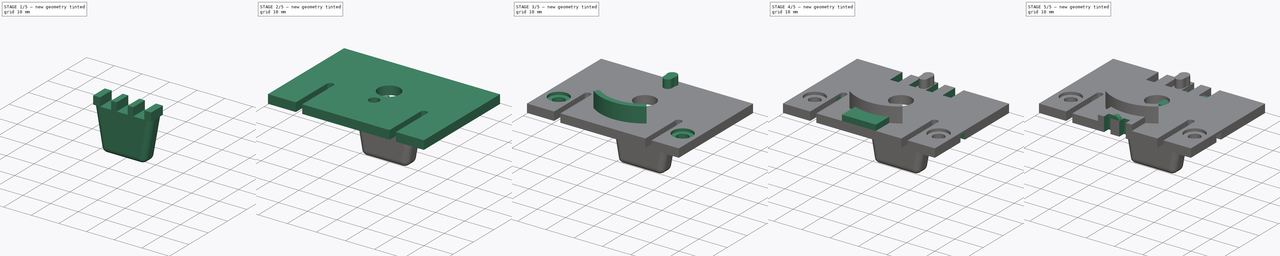
[diagram: build sequence overview — one tinted view per stage of 5, left to right]
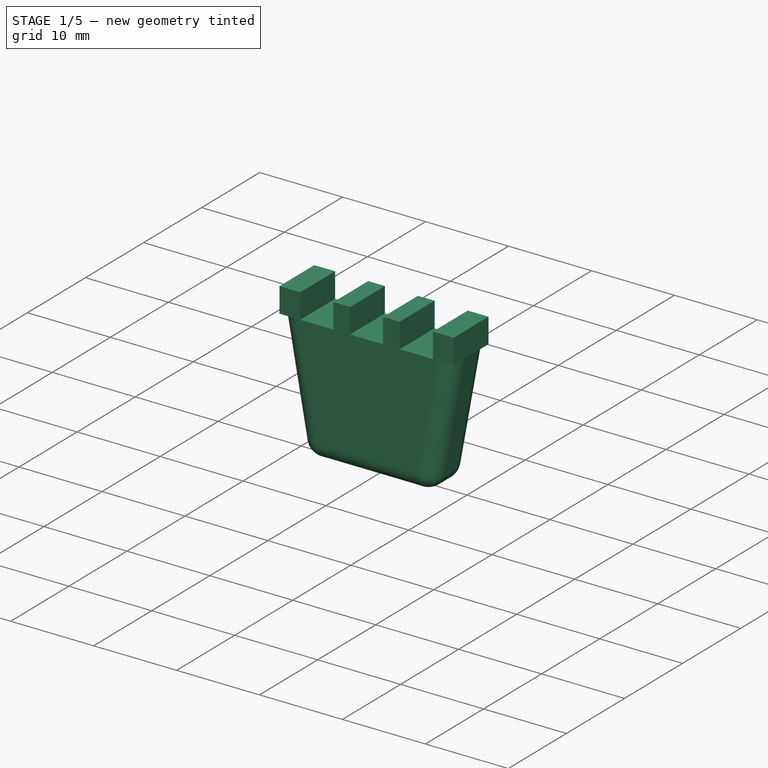
[diagram: stage 1 of 5 — iso view after this stage's code; geometry added in this stage tinted green]
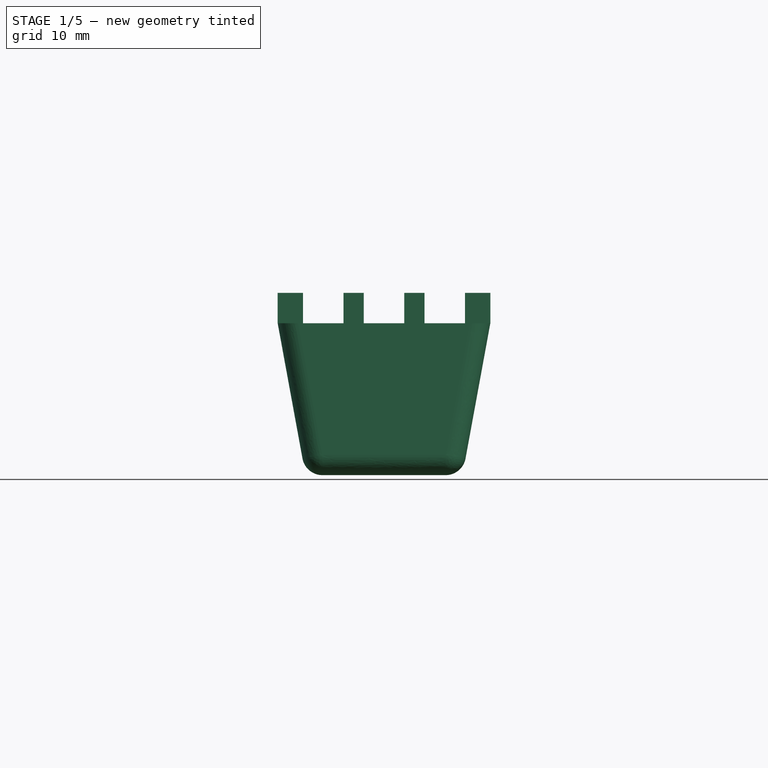
[diagram: stage 1 of 5 — front view after this stage's code; geometry added in this stage tinted green]
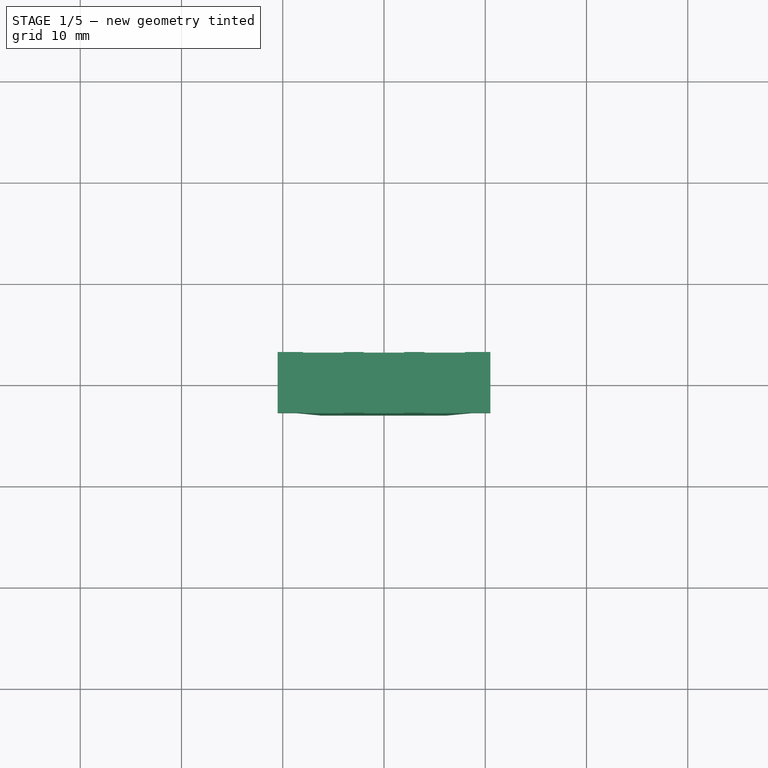
[diagram: stage 1 of 5 — top view after this stage's code; geometry added in this stage tinted green]
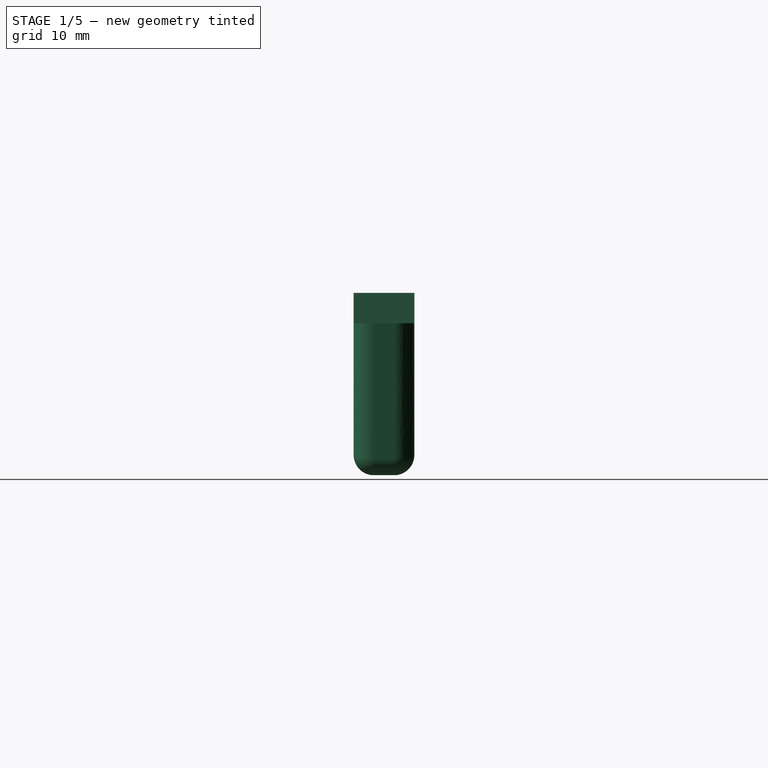
[diagram: stage 1 of 5 — right view after this stage's code; geometry added in this stage tinted green]
FCSTD DOCUMENT  (FreeCAD 0.20R29603 (Git))
Label: d10_bender
License: All rights reserved
LicenseURL: http://en.wikipedia.org/wiki/All_rights_reserved
objects: Sketcher::SketchObject×21, PartDesign::Pocket×10, PartDesign::Pad×9, PartDesign::Body×4, PartDesign::AdditiveLoft×1, PartDesign::Fillet×1, App::Part×1
note: 67 computed .brp shape members not serialized (recipe doc carries the construction recipe); baked Part::Feature solids carry a one-line shape summary decoded from their .brp

FEATURE [Sketcher::SketchObject] Sketch019
  AttachmentOffset = pos=(0,0,-3) rot=(0,0,1;0rad)
  FullyConstrained = true
  MapMode = 5
  Placement = pos=(0,0,-3) rot=(0,0,1;0rad)
  Support = -> [XY_Plane002]
  sketch-geometry (8):
    g0: LineSegment StartX=-8.5 StartY=3 StartZ=0 EndX=8.5 EndY=3 EndZ=0
    g1: LineSegment StartX=10.5 StartY=1 StartZ=0 EndX=10.5 EndY=-1 EndZ=0
    g2: LineSegment StartX=8.5 StartY=-3 StartZ=0 EndX=-8.5 EndY=-3 EndZ=0
    g3: LineSegment StartX=-10.5 StartY=-1 StartZ=0 EndX=-10.5 EndY=1 EndZ=0
    g4: ArcOfCircle CenterX=-8.5 CenterY=1 CenterZ=0 NormalX=0 NormalY=0 NormalZ=1 AngleXU=0 Radius=2 StartAngle=1.5708 EndAngle=3.14159
    g5: ArcOfCircle CenterX=-8.5 CenterY=-1 CenterZ=0 NormalX=0 NormalY=0 NormalZ=1 AngleXU=0 Radius=2 StartAngle=3.14159 EndAngle=4.71239
    g6: ArcOfCircle CenterX=8.5 CenterY=-1 CenterZ=0 NormalX=0 NormalY=0 NormalZ=1 AngleXU=0 Radius=2 StartAngle=4.71239 EndAngle=6.28319
    g7: ArcOfCircle CenterX=8.5 CenterY=1 CenterZ=0 NormalX=0 NormalY=0 NormalZ=1 AngleXU=0 Radius=2 StartAngle=1.72e-14 EndAngle=1.5708
  constraints (20):
    c: Horizontal(g0)
    c: Horizontal(g2)
    c: Vertical(g1)
    c: Vertical(g3)
    c: Tangent(g0,g4) = 1.5708
    c: Tangent(g3,g4) = 1.5708
    c: Tangent(g2,g5) = 1.5708
    c: Tangent(g3,g5) = 1.5708
    c: Tangent(g1,g6) = 1.5708
    c: Tangent(g2,g6) = 1.5708
    c: Tangent(g0,g7) = 1.5708
    c: Tangent(g1,g7) = 1.5708
    c: Radius(g4) = 2
    c: Equal(g4,g5)
    c: Equal(g6,g7)
    c: Equal(g6,g5)
    c: Distance(g3,g1) = 21
    c: DistanceY(g2,g0) = 6
    c: DistanceY(g-1,g0) = 3
    c: DistanceX(g-1,g1) = 10.5
FEATURE [Sketcher::SketchObject] Sketch020
  AttachmentOffset = pos=(0,0,-18) rot=(0,0,1;0rad)
  FullyConstrained = true
  MapMode = 5
  Placement = pos=(0,0,-18) rot=(0,0,1;0rad)
  Support = -> [XY_Plane002]
  sketch-geometry (8):
    g0: LineSegment StartX=-5.75 StartY=3 StartZ=0 EndX=5.75 EndY=3 EndZ=0
    g1: LineSegment StartX=7.75 StartY=1 StartZ=0 EndX=7.75 EndY=-1 EndZ=0
    g2: LineSegment StartX=5.75 StartY=-3 StartZ=0 EndX=-5.75 EndY=-3 EndZ=0
    g3: LineSegment StartX=-7.75 StartY=-1 StartZ=0 EndX=-7.75 EndY=1 EndZ=0
    g4: ArcOfCircle CenterX=-5.75 CenterY=1 CenterZ=0 NormalX=0 NormalY=0 NormalZ=1 AngleXU=0 Radius=2 StartAngle=1.5708 EndAngle=3.14159
    g5: ArcOfCircle CenterX=-5.75 CenterY=-1 CenterZ=0 NormalX=0 NormalY=0 NormalZ=1 AngleXU=0 Radius=2 StartAngle=3.14159 EndAngle=4.71239
    g6: ArcOfCircle CenterX=5.75 CenterY=-1 CenterZ=0 NormalX=0 NormalY=0 NormalZ=1 AngleXU=0 Radius=2 StartAngle=4.71239 EndAngle=6.28319
    g7: ArcOfCircle CenterX=5.75 CenterY=1 CenterZ=0 NormalX=0 NormalY=0 NormalZ=1 AngleXU=0 Radius=2 StartAngle=0 EndAngle=1.5708
  constraints (20):
    c: Horizontal(g0)
    c: Horizontal(g2)
    c: Vertical(g1)
    c: Vertical(g3)
    c: Tangent(g0,g4) = 1.5708
    c: Tangent(g3,g4) = 1.5708
    c: Tangent(g2,g5) = 1.5708
    c: Tangent(g3,g5) = 1.5708
    c: Tangent(g1,g6) = 1.5708
    c: Tangent(g2,g6) = 1.5708
    c: Tangent(g0,g7) = 1.5708
    c: Tangent(g1,g7) = 1.5708
    c: Radius(g4) = 2
    c: Equal(g4,g5)
    c: Equal(g5,g6)
    c: Equal(g6,g7)
    c: DistanceX(g3,g1) = 15.5
    c: DistanceX(g-1,g1) = 7.75
    c: DistanceY(g2,g0) = 6
    c: DistanceY(g2,g-1) = 3
FEATURE [PartDesign::AdditiveLoft] AdditiveLoft
  Closed = false
  Profile = -> Sketch020
  Ruled = false
  Sections = -> [Sketch019]
FEATURE [PartDesign::Fillet] Fillet
  Base = -> AdditiveLoft [Edge3,Edge2,Edge1,Edge8,Edge7,Edge6,Edge5,Edge4]
  BaseFeature = -> AdditiveLoft
  Radius = 2
  SupportTransform = false
  UseAllEdges = false
FEATURE [PartDesign::Body] Body
  Group = -> [Sketch,Pad,Sketch001,Pocket,Sketch002,Pocket001,Sketch004,Pocket002,Sketch009,Sketch010,Sketch012,Pocket004,Pocket005,Pad003,Sketch015,Pad006,Sketch016,Pad007,Sketch018,Pocket008,Sketch023,Pocket009,Sketch024,Pocket010,Sketch013,Pad010,Sketch014,Pad011,Sketch007,Pocket011]
  Origin = -> Origin
  Tip = -> Pocket011
FEATURE [Sketcher::SketchObject] Sketch025
  FullyConstrained = true
  MapMode = 5
  Support = -> [XY_Plane002]
  sketch-geometry (4):
    g0: LineSegment StartX=-10.5 StartY=3 StartZ=0 EndX=10.5 EndY=3 EndZ=0
    g1: LineSegment StartX=10.5 StartY=3 StartZ=0 EndX=10.5 EndY=-3 EndZ=0
    g2: LineSegment StartX=10.5 StartY=-3 StartZ=0 EndX=-10.5 EndY=-3 EndZ=0
    g3: LineSegment StartX=-10.5 StartY=-3 StartZ=0 EndX=-10.5 EndY=3 EndZ=0
  constraints (12):
    c: Coincident(g0,g1)
    c: Coincident(g1,g2)
    c: Coincident(g2,g3)
    c: Coincident(g3,g0)
    c: Horizontal(g0)
    c: Horizontal(g2)
    c: Vertical(g1)
    c: Vertical(g3)
    c: DistanceY(g1,g1) = 6
    c: DistanceY(g1,g-1) = 3
    c: DistanceX(g0,g0) = 21
    c: DistanceX(g-1,g0) = 10.5
FEATURE [PartDesign::Pad] Pad012
  BaseFeature = -> Fillet
  Direction = (0,0,1)
  Length = 3
  Length2 = 10
  Profile = -> Sketch025
  ReferenceAxis = -> Sketch025 [N_Axis]
  Reversed = true
  Type = 0
FEATURE [Sketcher::SketchObject] Sketch026
  FullyConstrained = true
  MapMode = 5
  Placement = pos=(0,0,0) rot=(1,0,0;1.5708rad)
  Support = -> [XZ_Plane002]
  sketch-geometry (12):
    g0: LineSegment StartX=-2 StartY=0 StartZ=0 EndX=2 EndY=0 EndZ=0
    g1: LineSegment StartX=2 StartY=0 StartZ=0 EndX=2 EndY=-3 EndZ=0
    g2: LineSegment StartX=2 StartY=-3 StartZ=0 EndX=-2 EndY=-3 EndZ=0
    g3: LineSegment StartX=-2 StartY=-3 StartZ=0 EndX=-2 EndY=0 EndZ=0
    g4: LineSegment StartX=4 StartY=0 StartZ=0 EndX=8 EndY=0 EndZ=0
    g5: LineSegment StartX=8 StartY=0 StartZ=0 EndX=8 EndY=-3 EndZ=0
    g6: LineSegment StartX=8 StartY=-3 StartZ=0 EndX=4 EndY=-3 EndZ=0
    g7: LineSegment StartX=4 StartY=-3 StartZ=0 EndX=4 EndY=0 EndZ=0
    g8: LineSegment StartX=-8 StartY=0 StartZ=0 EndX=-4 EndY=0 EndZ=0
    g9: LineSegment StartX=-4 StartY=0 StartZ=0 EndX=-4 EndY=-3 EndZ=0
    g10: LineSegment StartX=-4 StartY=-3 StartZ=0 EndX=-8 EndY=-3 EndZ=0
    g11: LineSegment StartX=-8 StartY=-3 StartZ=0 EndX=-8 EndY=0 EndZ=0
  constraints (36):
    c: Coincident(g0,g1)
    c: Coincident(g1,g2)
    c: Coincident(g2,g3)
    c: Coincident(g3,g0)
    c: Horizontal(g0)
    c: Horizontal(g2)
    c: Vertical(g1)
    c: Vertical(g3)
    c: DistanceX(g0,g0) = 4
    c: DistanceX(g0,g-1) = 2
    c: DistanceY(g1,g1) = 3
    c: PointOnObject(g0,g-1)
    c: Coincident(g4,g5)
    c: Coincident(g5,g6)
    c: Coincident(g6,g7)
    c: Coincident(g7,g4)
    c: Horizontal(g4)
    c: Horizontal(g6)
    c: Vertical(g5)
    c: Vertical(g7)
    c: Equal(g0,g4) = 4
    c: Equal(g1,g5) = 3
    c: Coincident(g8,g9)
    c: Coincident(g9,g10)
    c: Coincident(g10,g11)
    c: Coincident(g11,g8)
    c: Horizontal(g8)
    c: Horizontal(g10)
    c: Vertical(g9)
    c: Vertical(g11)
    c: Equal(g0,g8) = 4
    c: Equal(g1,g9) = 3
    c: DistanceX(g9,g2) = 2
    c: DistanceX(g1,g6) = 2
    c: PointOnObject(g4,g-1)
    c: PointOnObject(g8,g-1)
FEATURE [PartDesign::Pocket] Pocket012
  BaseFeature = -> Pad012
  Direction = (0,1,2e-16)
  Length = 5
  Length2 = 5
  Midplane = true
  Profile = -> Sketch026
  ReferenceAxis = -> Sketch026 [N_Axis]
  Type = 1
FEATURE [PartDesign::Body] Body001  label="presser"
  Group = -> [Sketch019,Sketch020,AdditiveLoft,Fillet,Sketch025,Pad012,Sketch026,Pocket012]
  Origin = -> Origin002
  Placement = pos=(0,13.1,0) rot=(0,0,1;0rad)
  Tip = -> Pocket012
FEATURE [App::Part] Part
  Group = -> [Body,Body001,Body002,Body003]
  Origin = -> Origin001
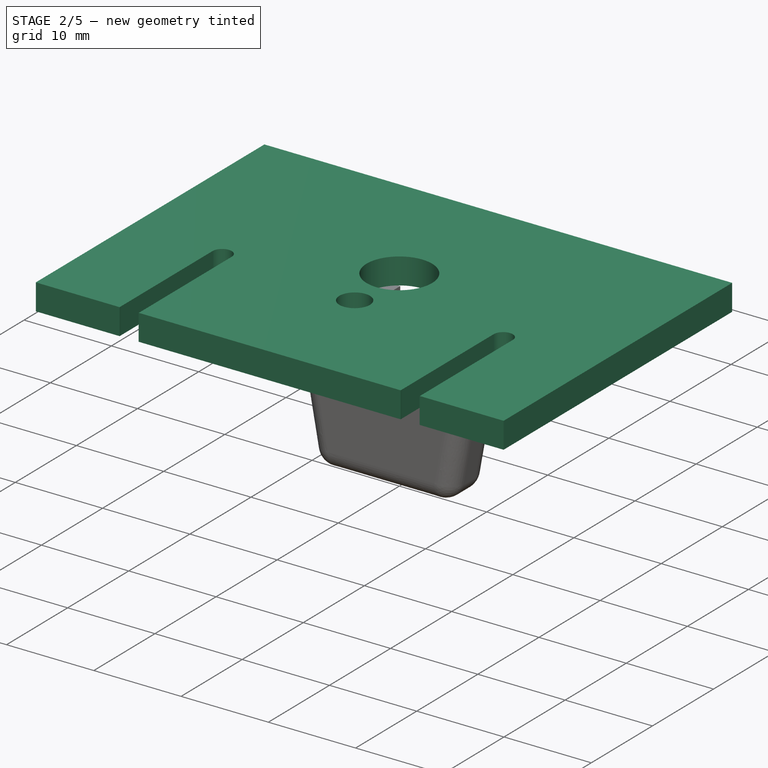
[diagram: stage 2 of 5 — iso view after this stage's code; geometry added in this stage tinted green]
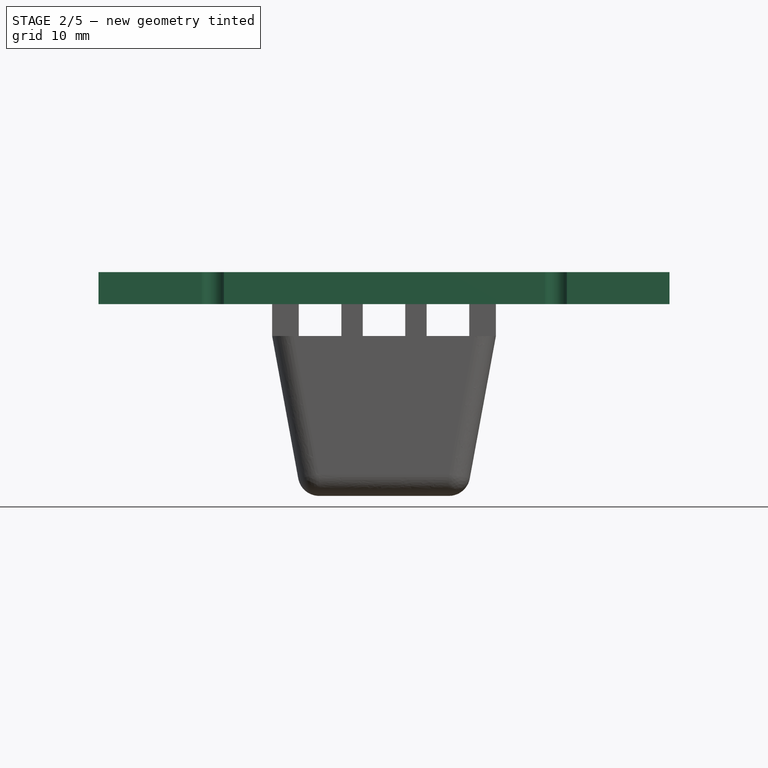
[diagram: stage 2 of 5 — front view after this stage's code; geometry added in this stage tinted green]
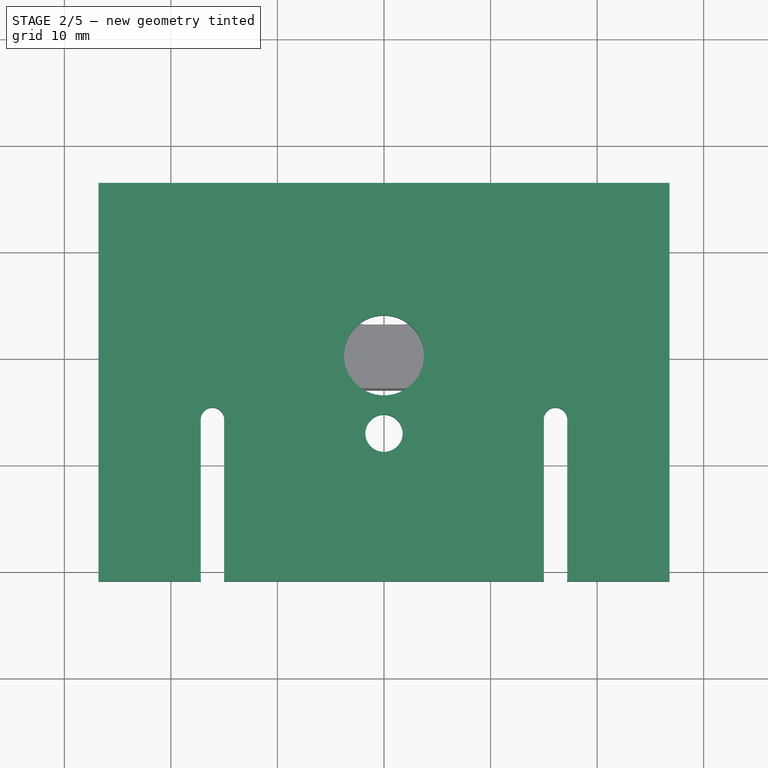
[diagram: stage 2 of 5 — top view after this stage's code; geometry added in this stage tinted green]
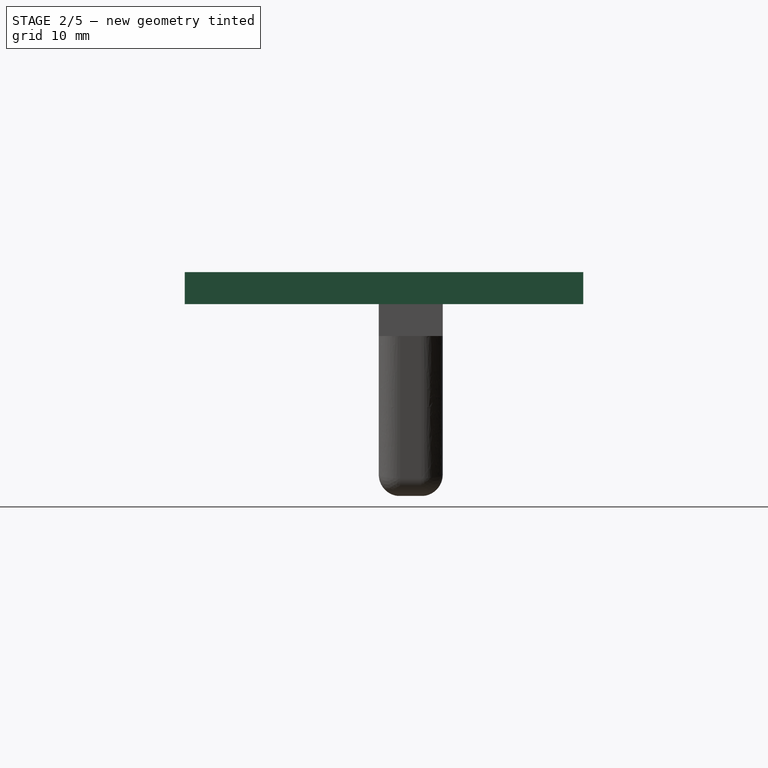
[diagram: stage 2 of 5 — right view after this stage's code; geometry added in this stage tinted green]
FEATURE [Sketcher::SketchObject] Sketch  label="base_pad"
  FullyConstrained = true
  MapMode = 5
  Support = -> [XY_Plane]
  sketch-geometry (4):
    g0: LineSegment StartX=-26.8 StartY=16.19 StartZ=0 EndX=26.8 EndY=16.19 EndZ=0
    g1: LineSegment StartX=26.8 StartY=16.19 StartZ=0 EndX=26.8 EndY=-21.21 EndZ=0
    g2: LineSegment StartX=26.8 StartY=-21.21 StartZ=0 EndX=-26.8 EndY=-21.21 EndZ=0
    g3: LineSegment StartX=-26.8 StartY=-21.21 StartZ=0 EndX=-26.8 EndY=16.19 EndZ=0
  constraints (12):
    c: Coincident(g0,g1)
    c: Coincident(g1,g2)
    c: Coincident(g2,g3)
    c: Coincident(g3,g0)
    c: Horizontal(g0)
    c: Horizontal(g2)
    c: Vertical(g1)
    c: Vertical(g3)
    c: DistanceX(g0,g0) = 53.6
    c: DistanceY(g-1,g0) = 16.19
    c: DistanceY(g3,g3) = 37.4
    c: DistanceX(g-1,g0) = 26.8
FEATURE [PartDesign::Pad] Pad
  Direction = (0,0,1)
  Length = 3
  Length2 = 10
  Profile = -> Sketch
  ReferenceAxis = -> Sketch [N_Axis]
  Type = 0
FEATURE [Sketcher::SketchObject] Sketch001  label="hole_pot_1"
  FullyConstrained = true
  MapMode = 5
  Support = -> [XY_Plane]
  sketch-geometry (1):
    g0: Circle CenterX=0 CenterY=0 CenterZ=0 NormalX=0 NormalY=0 NormalZ=1 AngleXU=0 Radius=3.75
  constraints (2):
    c: Coincident(g0,g-1)
    c: Diameter(g0) = 7.5
FEATURE [PartDesign::Pocket] Pocket
  BaseFeature = -> Pad
  Direction = (0,0,-1)
  Length = 3
  Length2 = 5
  Profile = -> Sketch001
  ReferenceAxis = -> Sketch001 [N_Axis]
  Reversed = true
  Type = 1
FEATURE [Sketcher::SketchObject] Sketch002  label="hole_pot_2"
  ExternalGeometry = -> [Pocket]
  FullyConstrained = true
  MapMode = 5
  Support = -> [XY_Plane]
  sketch-geometry (1):
    g0: Circle CenterX=0 CenterY=-7.31 CenterZ=0 NormalX=0 NormalY=0 NormalZ=1 AngleXU=0 Radius=1.75
  constraints (3):
    c: PointOnObject(g0,g-2)
    c: Diameter(g0) = 3.5
    c: DistanceY(g0,g-4) = 23.5
FEATURE [PartDesign::Pocket] Pocket001
  BaseFeature = -> Pocket
  Direction = (0,0,-1)
  Length = 5
  Length2 = 5
  Profile = -> Sketch002
  ReferenceAxis = -> Sketch002 [N_Axis]
  Reversed = true
  Type = 1
FEATURE [Sketcher::SketchObject] Sketch004  label="spacer_bender"
  FullyConstrained = true
  MapMode = 5
  Support = -> [XY_Plane]
  sketch-geometry (8):
    g0: ArcOfCircle CenterX=-16.1 CenterY=-6 CenterZ=0 NormalX=0 NormalY=0 NormalZ=1 AngleXU=0 Radius=1.1 StartAngle=1e-16 EndAngle=3.14159
    g1: ArcOfCircle CenterX=-16.1 CenterY=-21 CenterZ=0 NormalX=0 NormalY=0 NormalZ=1 AngleXU=0 Radius=1.1 StartAngle=3.14159 EndAngle=6.28319
    g2: LineSegment StartX=-17.2 StartY=-6 StartZ=0 EndX=-17.2 EndY=-21 EndZ=0
    g3: LineSegment StartX=-15 StartY=-21 StartZ=0 EndX=-15 EndY=-6 EndZ=0
    g4: ArcOfCircle CenterX=16.1 CenterY=-6 CenterZ=0 NormalX=0 NormalY=0 NormalZ=1 AngleXU=0 Radius=1.1 StartAngle=4e-16 EndAngle=3.14159
    g5: ArcOfCircle CenterX=16.1 CenterY=-21 CenterZ=0 NormalX=0 NormalY=0 NormalZ=1 AngleXU=0 Radius=1.1 StartAngle=3.14159 EndAngle=6.28319
    g6: LineSegment StartX=15 StartY=-6 StartZ=0 EndX=15 EndY=-21 EndZ=0
    g7: LineSegment StartX=17.2 StartY=-21 StartZ=0 EndX=17.2 EndY=-6 EndZ=0
  constraints (20):
    c: Tangent(g0,g2) = -1.5708
    c: Tangent(g2,g1) = -1.5708
    c: Tangent(g1,g3) = -1.5708
    c: Tangent(g3,g0) = -1.5708
    c: Equal(g0,g1)
    c: Vertical(g2)
    c: DistanceX(g1,g-1) = 15
    c: DistanceX(g1,g1) = 2.2
    c: DistanceY(g1,g0) = 15
    c: Tangent(g4,g6) = -1.5708
    c: Tangent(g6,g5) = -1.5708
    c: Tangent(g5,g7) = -1.5708
    c: Tangent(g7,g4) = -1.5708
    c: Equal(g4,g5)
    c: Vertical(g6)
    c: DistanceX(g-1,g4) = 15
    c: DistanceX(g5,g5) = 2.2
    c: DistanceY(g5,g4) = 15
    c: DistanceY(g4,g-1) = 6
    c: DistanceY(g0,g-1) = 6
FEATURE [PartDesign::Pocket] Pocket002
  BaseFeature = -> Pocket001
  Direction = (0,0,-1)
  Length = 5
  Length2 = 5
  Profile = -> Sketch004
  ReferenceAxis = -> Sketch004 [N_Axis]
  Reversed = true
  Type = 1
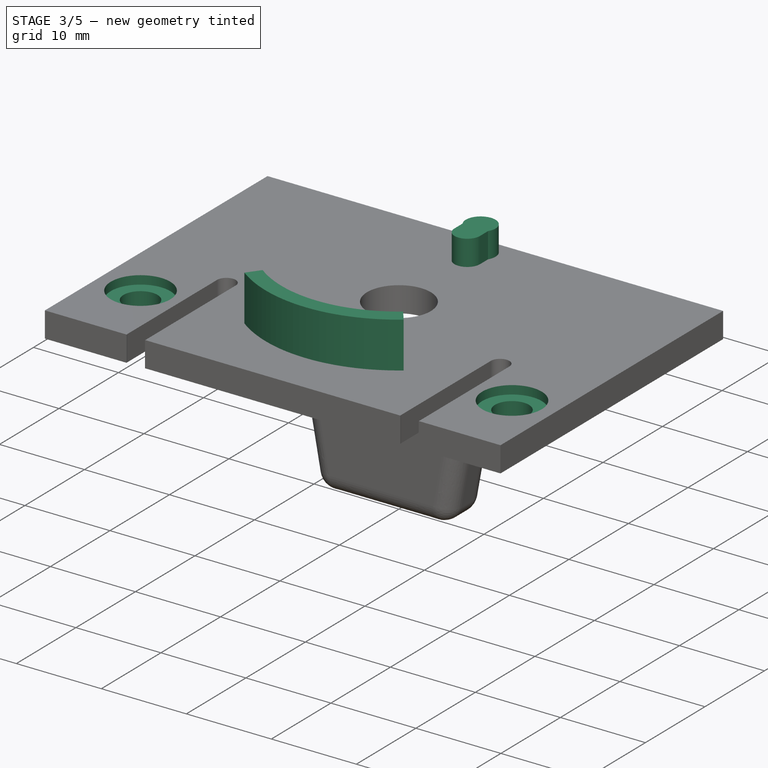
[diagram: stage 3 of 5 — iso view after this stage's code; geometry added in this stage tinted green]
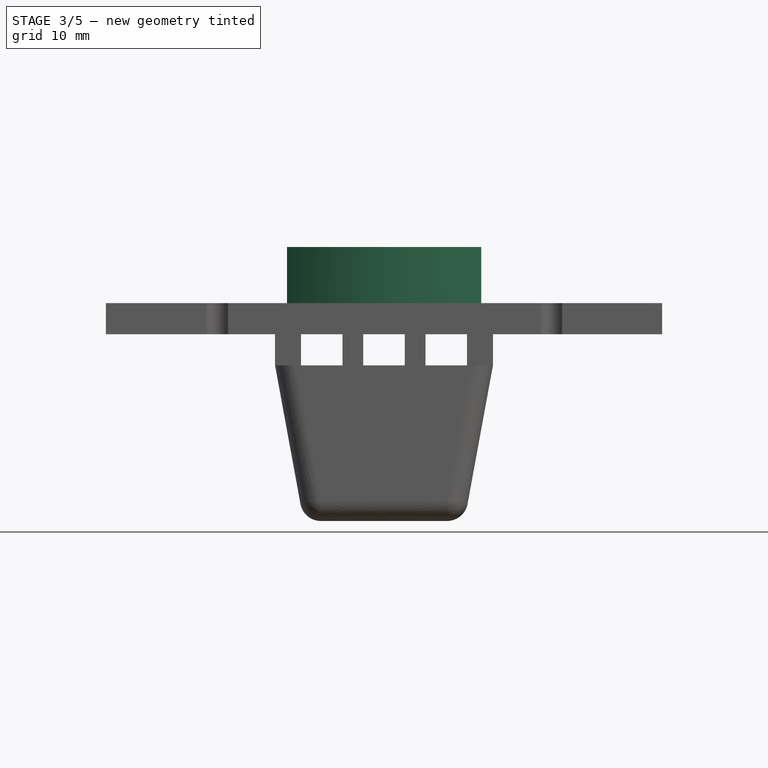
[diagram: stage 3 of 5 — front view after this stage's code; geometry added in this stage tinted green]
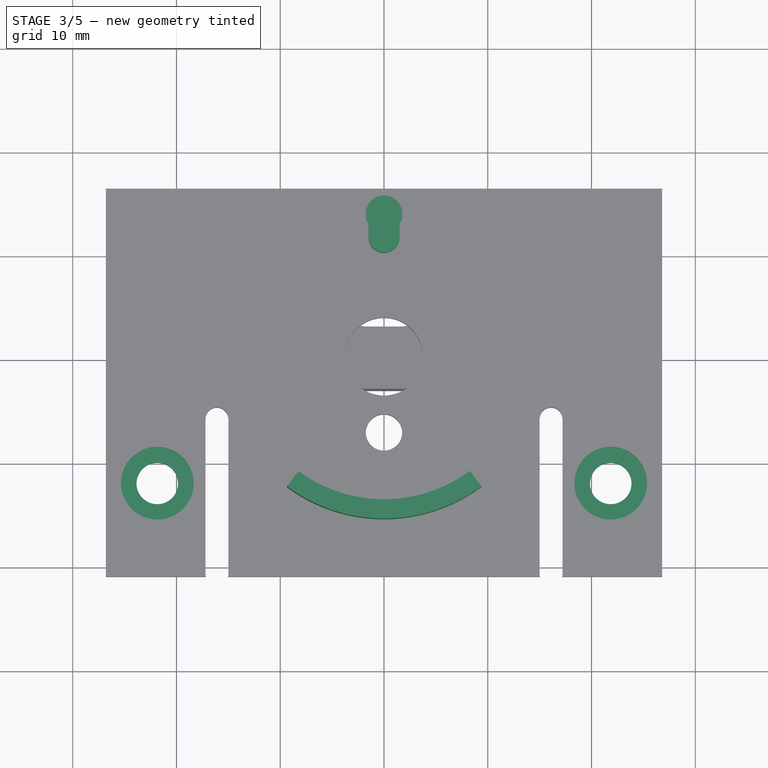
[diagram: stage 3 of 5 — top view after this stage's code; geometry added in this stage tinted green]
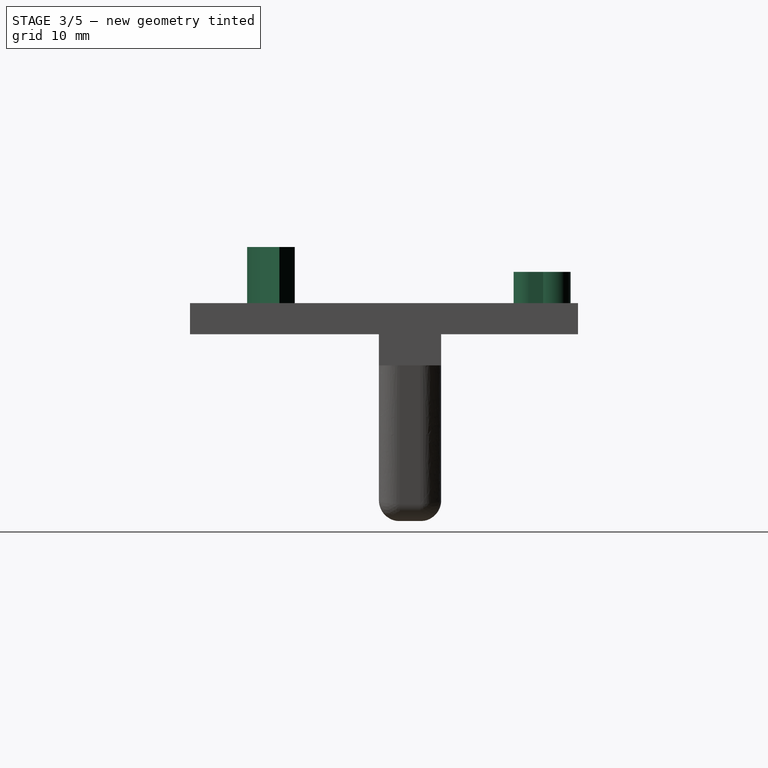
[diagram: stage 3 of 5 — right view after this stage's code; geometry added in this stage tinted green]
FEATURE [Sketcher::SketchObject] Sketch007  label="square_spring"
  FullyConstrained = true
  MapMode = 5
  Support = -> [XY_Plane]
  sketch-geometry (8):
    g0: LineSegment StartX=-3.85 StartY=-18.91 StartZ=0 EndX=-1.55 EndY=-18.91 EndZ=0
    g1: LineSegment StartX=-1.55 StartY=-18.91 StartZ=0 EndX=-1.55 EndY=-21.21 EndZ=0
    g2: LineSegment StartX=-1.55 StartY=-21.21 StartZ=0 EndX=-3.85 EndY=-21.21 EndZ=0
    g3: LineSegment StartX=-3.85 StartY=-21.21 StartZ=0 EndX=-3.85 EndY=-18.91 EndZ=0
    g4: LineSegment StartX=1.55 StartY=-18.91 StartZ=0 EndX=3.85 EndY=-18.91 EndZ=0
    g5: LineSegment StartX=3.85 StartY=-18.91 StartZ=0 EndX=3.85 EndY=-21.21 EndZ=0
    g6: LineSegment StartX=3.85 StartY=-21.21 StartZ=0 EndX=1.55 EndY=-21.21 EndZ=0
    g7: LineSegment StartX=1.55 StartY=-21.21 StartZ=0 EndX=1.55 EndY=-18.91 EndZ=0
  constraints (24):
    c: Coincident(g0,g1)
    c: Coincident(g1,g2)
    c: Coincident(g2,g3)
    c: Coincident(g3,g0)
    c: Horizontal(g0)
    c: Horizontal(g2)
    c: Vertical(g1)
    c: Vertical(g3)
    c: DistanceY(g3,g3) = 2.3
    c: DistanceX(g0,g0) = 2.3
    c: DistanceX(g1,g-1) = 1.55
    c: Coincident(g4,g5)
    c: Coincident(g5,g6)
    c: Coincident(g6,g7)
    c: Coincident(g7,g4)
    c: Horizontal(g4)
    c: Horizontal(g6)
    c: Vertical(g5)
    c: Vertical(g7)
    c: Equal(g4,g0)
    c: Equal(g7,g3)
    c: DistanceX(g-1,g6) = 1.55
    c: DistanceY(g0,g-1) = 18.91
    c: DistanceY(g4,g-1) = 18.91
FEATURE [Sketcher::SketchObject] Sketch009  label="holes_b"
  FullyConstrained = true
  MapMode = 5
  Support = -> [XY_Plane]
  sketch-geometry (2):
    g0: Circle CenterX=21.85 CenterY=-12.21 CenterZ=0 NormalX=0 NormalY=0 NormalZ=1 AngleXU=0 Radius=2
    g1: Circle CenterX=-21.85 CenterY=-12.21 CenterZ=0 NormalX=0 NormalY=0 NormalZ=1 AngleXU=0 Radius=2
  constraints (6):
    c: DistanceX(g1,g0) = 43.7
    c: DistanceX(g1,g-1) = 21.85
    c: Diameter(g1) = 4
    c: Diameter(g0) = 4
    c: DistanceY(g0,g-1) = 12.21
    c: DistanceY(g1,g-1) = 12.21
FEATURE [PartDesign::Pocket] Pocket004
  BaseFeature = -> Pocket002
  Direction = (0,0,-1)
  Length = 5
  Length2 = 5
  Profile = -> Sketch009
  ReferenceAxis = -> Sketch009 [N_Axis]
  Reversed = true
  Type = 1
FEATURE [Sketcher::SketchObject] Sketch010  label="holes_b_s"
  FullyConstrained = true
  MapMode = 5
  Placement = pos=(0,0,3) rot=(0,0,1;0rad)
  Support = -> [Pocket004]
  sketch-geometry (2):
    g0: Circle CenterX=-21.85 CenterY=-12.21 CenterZ=0 NormalX=0 NormalY=0 NormalZ=1 AngleXU=0 Radius=3.5
    g1: Circle CenterX=21.85 CenterY=-12.21 CenterZ=0 NormalX=0 NormalY=0 NormalZ=1 AngleXU=0 Radius=3.5
  constraints (6):
    c: Diameter(g1) = 7
    c: Diameter(g0) = 7
    c: DistanceX(g0,g-1) = 21.85
    c: DistanceX(g-1,g1) = 21.85
    c: DistanceY(g0,g-1) = 12.21
    c: DistanceY(g1,g-1) = 12.21
FEATURE [PartDesign::Pocket] Pocket005
  BaseFeature = -> Pocket004
  Direction = (0,0,-1)
  Length = 1
  Length2 = 5
  Profile = -> Sketch010
  ReferenceAxis = -> Sketch010 [N_Axis]
  Type = 0
FEATURE [Sketcher::SketchObject] Sketch012  label="circle_b"
  ExternalGeometry = -> [Pocket005]
  FullyConstrained = true
  MapMode = 5
  Placement = pos=(0,0,3) rot=(0,0,1;0rad)
  Support = -> [Pocket005]
  sketch-geometry (4):
    g0: ArcOfCircle CenterX=0 CenterY=0 CenterZ=0 NormalX=0 NormalY=0 NormalZ=1 AngleXU=0 Radius=13.85 StartAngle=4.07429 EndAngle=5.35228
    g1: ArcOfCircle CenterX=0 CenterY=0 CenterZ=0 NormalX=0 NormalY=0 NormalZ=1 AngleXU=0 Radius=15.7 StartAngle=4.07429 EndAngle=5.35228
    g2: LineSegment StartX=-9.35199 StartY=-12.6107 StartZ=0 EndX=-8.25 EndY=-11.1247 EndZ=0
    g3: LineSegment StartX=9.37466 StartY=-12.5939 StartZ=0 EndX=8.27 EndY=-11.1099 EndZ=0
  constraints (12):
    c: Coincident(g0,g-1)
    c: Coincident(g1,g0)
    c: Diameter(g1) = 31.4
    c: Diameter(g0) = 27.7
    c: Coincident(g2,g1)
    c: Coincident(g2,g0)
    c: Coincident(g3,g1)
    c: Coincident(g3,g0)
    c: Distance(g3) = 1.85
    c: Distance(g2) = 1.85
    c: DistanceX(g0,g0) = 16.52
    c: DistanceX(g0,g0) = 8.25
FEATURE [PartDesign::Pad] Pad003
  BaseFeature = -> Pocket005
  Direction = (0,0,1)
  Length = 5.4
  Length2 = 10
  Profile = -> Sketch012
  ReferenceAxis = -> Sketch012 [N_Axis]
  Type = 0
FEATURE [Sketcher::SketchObject] Sketch013  label="spring_base"
  AttachmentOffset = pos=(0,0,3) rot=(0,0,1;0rad)
  FullyConstrained = true
  MapMode = 5
  Placement = pos=(0,0,3) rot=(0,0,1;0rad)
  Support = -> [XY_Plane]
  sketch-geometry (4):
    g0: LineSegment StartX=-6 StartY=-14.2 StartZ=0 EndX=6 EndY=-14.2 EndZ=0
    g1: LineSegment StartX=6 StartY=-14.2 StartZ=0 EndX=6 EndY=-21.2 EndZ=0
    g2: LineSegment StartX=6 StartY=-21.2 StartZ=0 EndX=-6 EndY=-21.2 EndZ=0
    g3: LineSegment StartX=-6 StartY=-21.2 StartZ=0 EndX=-6 EndY=-14.2 EndZ=0
  constraints (12):
    c: Coincident(g0,g1)
    c: Coincident(g1,g2)
    c: Coincident(g2,g3)
    c: Coincident(g3,g0)
    c: Horizontal(g0)
    c: Horizontal(g2)
    c: Vertical(g1)
    c: Vertical(g3)
    c: DistanceX(g2,g2) = 12
    c: DistanceX(g2,g-1) = 6
    c: DistanceY(g1,g1) = 7
    c: DistanceY(g0,g-1) = 14.2
FEATURE [Sketcher::SketchObject] Sketch014  label="spring_holder"
  AttachmentOffset = pos=(0,0,21.2) rot=(0,0,1;0rad)
  FullyConstrained = true
  MapMode = 5
  Placement = pos=(0,-21.2,-4.7e-15) rot=(1,0,0;1.5708rad)
  Support = -> [XZ_Plane]
  sketch-geometry (1):
    g0: Circle CenterX=0 CenterY=4.66 CenterZ=0 NormalX=0 NormalY=0 NormalZ=1 AngleXU=0 Radius=1.57
  constraints (3):
    c: Diameter(g0) = 3.14
    c: DistanceY(g-1,g0) = 4.66
    c: PointOnObject(g0,g-2)
FEATURE [Sketcher::SketchObject] Sketch015  label="b_stopper_2"
  FullyConstrained = true
  MapMode = 5
  Support = -> [XY_Plane]
  sketch-geometry (4):
    g0: ArcOfCircle CenterX=0 CenterY=13.73 CenterZ=0 NormalX=0 NormalY=0 NormalZ=1 AngleXU=0 Radius=1.5 StartAngle=-9e-16 EndAngle=3.14159
    g1: ArcOfCircle CenterX=0 CenterY=11.48 CenterZ=0 NormalX=0 NormalY=0 NormalZ=1 AngleXU=0 Radius=1.5 StartAngle=3.14159 EndAngle=6.28319
    g2: LineSegment StartX=-1.5 StartY=13.73 StartZ=0 EndX=-1.5 EndY=11.48 EndZ=0
    g3: LineSegment StartX=1.5 StartY=11.48 StartZ=0 EndX=1.5 EndY=13.73 EndZ=0
  constraints (10):
    c: Tangent(g0,g2) = -1.5708
    c: Tangent(g2,g1) = -1.5708
    c: Tangent(g1,g3) = -1.5708
    c: Tangent(g3,g0) = -1.5708
    c: Equal(g0,g1)
    c: PointOnObject(g1,g-2)
    c: DistanceX(g1,g1) = 3
    c: DistanceY(g-1,g0) = 13.73
    c: DistanceY(g1,g0) = 2.25
    c: PointOnObject(g0,g-2)
FEATURE [PartDesign::Pad] Pad006
  BaseFeature = -> Pad003
  Direction = (0,0,1)
  Length = 6
  Length2 = 10
  Profile = -> Sketch015
  ReferenceAxis = -> Sketch015 [N_Axis]
  Type = 0
FEATURE [Sketcher::SketchObject] Sketch016  label="b_stopper_1"
  FullyConstrained = true
  MapMode = 5
  Support = -> [XY_Plane]
  sketch-geometry (1):
    g0: Circle CenterX=0 CenterY=13.73 CenterZ=0 NormalX=0 NormalY=0 NormalZ=1 AngleXU=0 Radius=1.75
  constraints (3):
    c: DistanceY(g-1,g0) = 13.73
    c: Diameter(g0) = 3.5
    c: PointOnObject(g0,g-2)
FEATURE [PartDesign::Pad] Pad007
  BaseFeature = -> Pad006
  Direction = (0,0,1)
  Length = 6
  Length2 = 10
  Profile = -> Sketch016
  ReferenceAxis = -> Sketch016 [N_Axis]
  Type = 0
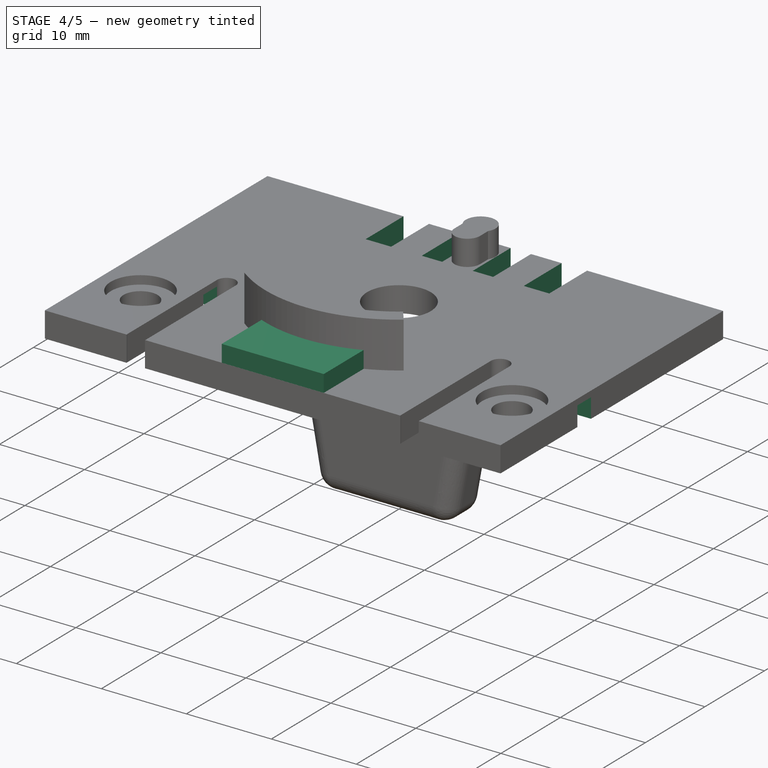
[diagram: stage 4 of 5 — iso view after this stage's code; geometry added in this stage tinted green]
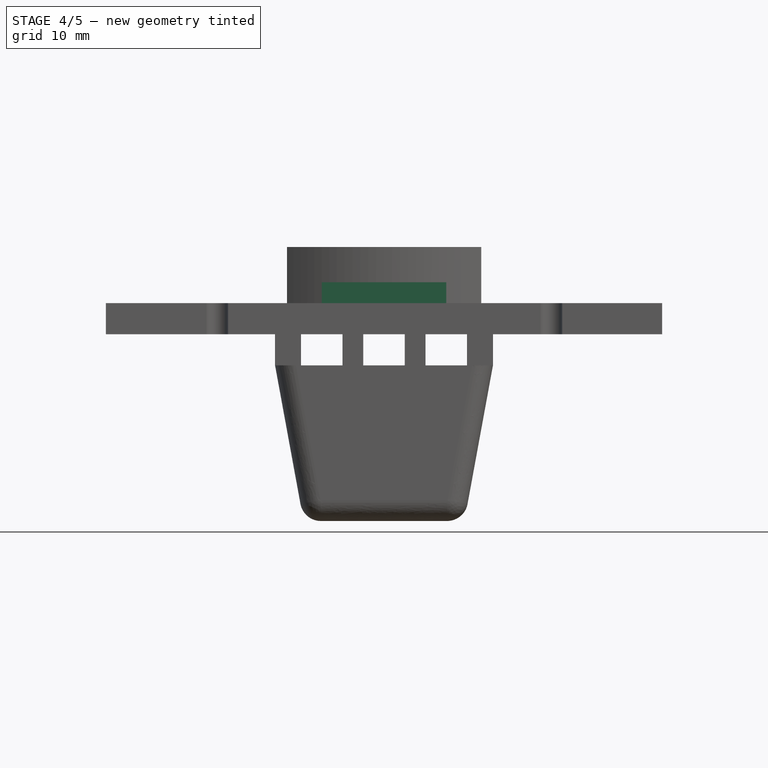
[diagram: stage 4 of 5 — front view after this stage's code; geometry added in this stage tinted green]
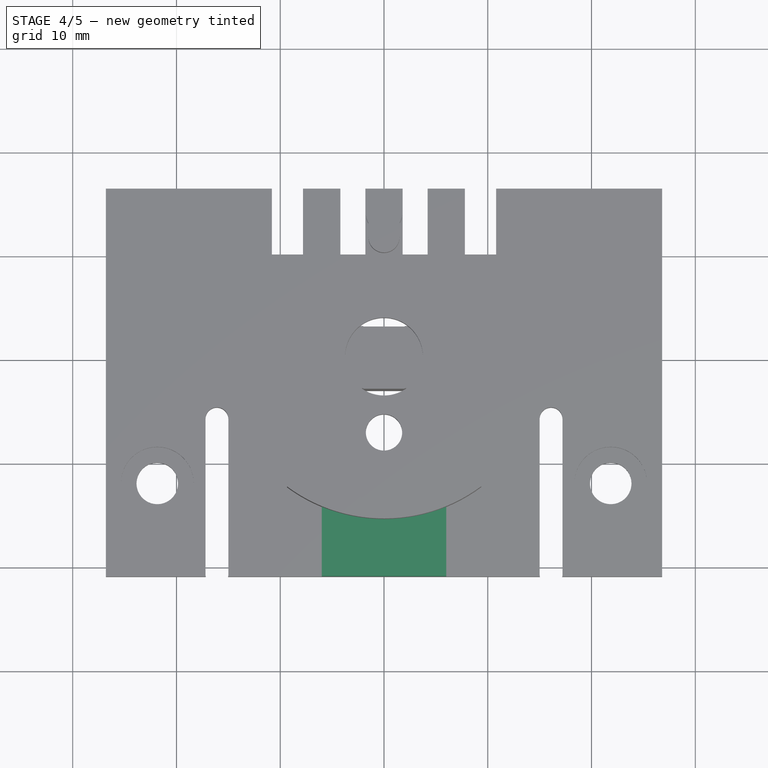
[diagram: stage 4 of 5 — top view after this stage's code; geometry added in this stage tinted green]
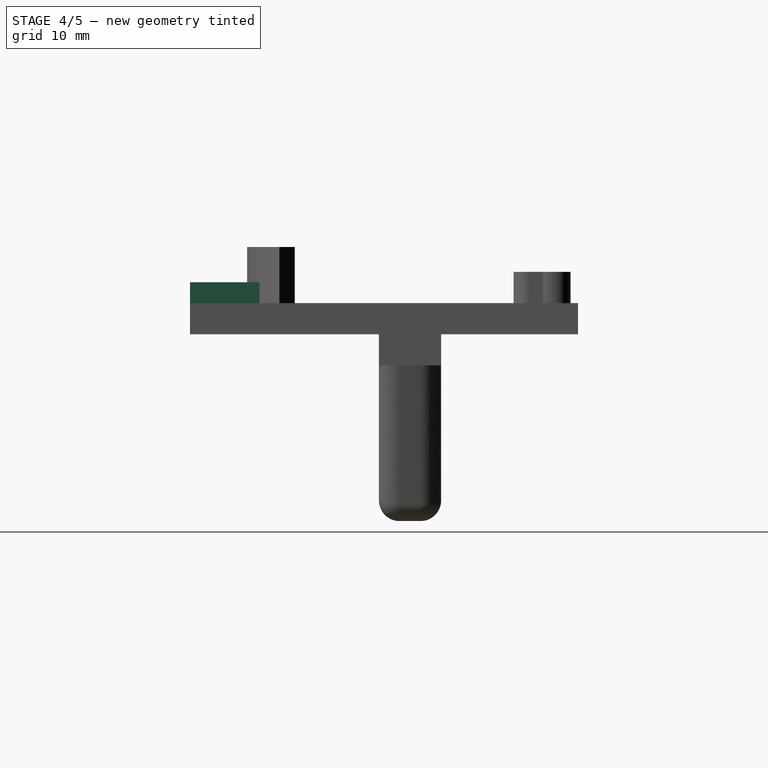
[diagram: stage 4 of 5 — right view after this stage's code; geometry added in this stage tinted green]
FEATURE [Sketcher::SketchObject] Sketch018  label="hole_presser"
  FullyConstrained = true
  MapMode = 5
  Support = -> [XY_Plane]
  sketch-geometry (16):
    g0: LineSegment StartX=-10.8 StartY=16.23 StartZ=0 EndX=-7.8 EndY=16.23 EndZ=0
    g1: LineSegment StartX=-7.8 StartY=16.23 StartZ=0 EndX=-7.8 EndY=9.83 EndZ=0
    g2: LineSegment StartX=-7.8 StartY=9.83 StartZ=0 EndX=-10.8 EndY=9.83 EndZ=0
    g3: LineSegment StartX=-10.8 StartY=9.83 StartZ=0 EndX=-10.8 EndY=16.23 EndZ=0
    g4: LineSegment StartX=-4.2 StartY=16.23 StartZ=0 EndX=-1.8 EndY=16.23 EndZ=0
    g5: LineSegment StartX=-1.8 StartY=16.23 StartZ=0 EndX=-1.8 EndY=9.83 EndZ=0
    g6: LineSegment StartX=-1.8 StartY=9.83 StartZ=0 EndX=-4.2 EndY=9.83 EndZ=0
    g7: LineSegment StartX=-4.2 StartY=9.83 StartZ=0 EndX=-4.2 EndY=16.23 EndZ=0
    g8: LineSegment StartX=7.8 StartY=16.23 StartZ=0 EndX=10.8 EndY=16.23 EndZ=0
    g9: LineSegment StartX=10.8 StartY=16.23 StartZ=0 EndX=10.8 EndY=9.83 EndZ=0
    g10: LineSegment StartX=10.8 StartY=9.83 StartZ=0 EndX=7.8 EndY=9.83 EndZ=0
    g11: LineSegment StartX=7.8 StartY=9.83 StartZ=0 EndX=7.8 EndY=16.23 EndZ=0
    g12: LineSegment StartX=1.8 StartY=16.23 StartZ=0 EndX=4.2 EndY=16.23 EndZ=0
    g13: LineSegment StartX=4.2 StartY=16.23 StartZ=0 EndX=4.2 EndY=9.83 EndZ=0
    g14: LineSegment StartX=4.2 StartY=9.83 StartZ=0 EndX=1.8 EndY=9.83 EndZ=0
    g15: LineSegment StartX=1.8 StartY=9.83 StartZ=0 EndX=1.8 EndY=16.23 EndZ=0
  constraints (48):
    c: Coincident(g0,g1)
    c: Coincident(g1,g2)
    c: Coincident(g2,g3)
    c: Coincident(g3,g0)
    c: Horizontal(g0)
    c: Horizontal(g2)
    c: Vertical(g1)
    c: Vertical(g3)
    c: Coincident(g4,g5)
    c: Coincident(g5,g6)
    c: Coincident(g6,g7)
    c: Coincident(g7,g4)
    c: Horizontal(g4)
    c: Horizontal(g6)
    c: Vertical(g5)
    c: Vertical(g7)
    c: Coincident(g8,g9)
    c: Coincident(g9,g10)
    c: Coincident(g10,g11)
    c: Coincident(g11,g8)
    c: Horizontal(g8)
    c: Horizontal(g10)
    c: Vertical(g9)
    c: Vertical(g11)
    c: DistanceY(g-1,g0) = 16.23
    c: DistanceY(g-1,g4) = 16.23
    c: DistanceY(g-1,g8) = 16.23
    c: DistanceY(g9,g9) = 6.4
    c: Equal(g9,g5)
    c: Equal(g5,g1)
    c: Coincident(g12,g13)
    c: Coincident(g13,g14)
    c: Coincident(g14,g15)
    c: Coincident(g15,g12)
    c: Horizontal(g12)
    c: Horizontal(g14)
    c: Vertical(g13)
    c: Vertical(g15)
    c: DistanceX(g-1,g12) = 1.8
    c: Equal(g9,g13)
    c: DistanceX(g4,g-1) = 1.8
    c: DistanceY(g-1,g12) = 16.23
    c: DistanceX(g12,g8) = 3.6
    c: DistanceX(g0,g4) = 3.6
    c: DistanceX(g4,g4) = 2.4
    c: Equal(g4,g12)
    c: DistanceX(g0,g0) = 3
    c: Equal(g0,g8)
FEATURE [PartDesign::Pocket] Pocket008
  BaseFeature = -> Pad007
  Direction = (0,0,-1)
  Length = 4
  Length2 = 5
  Profile = -> Sketch018
  ReferenceAxis = -> Sketch018 [N_Axis]
  Reversed = true
  Type = 1
FEATURE [PartDesign::Body] Body003  label="u_shape"
  Group = -> [Sketch022,Pad009]
  Origin = -> Origin004
  Placement = pos=(-26.8,-21.2,-2.2) rot=(0,0,1;0rad)
  Tip = -> Pad009
FEATURE [Sketcher::SketchObject] Sketch023  label="hole_bender"
  AttachmentOffset = pos=(0,0,-26.8) rot=(0,0,1;0rad)
  FullyConstrained = true
  MapMode = 5
  Placement = pos=(-26.8,6e-15,-6e-15) rot=(0.57735,0.57735,0.57735;2.0944rad)
  Support = -> [YZ_Plane]
  sketch-geometry (4):
    g0: LineSegment StartX=-8.3 StartY=2.3 StartZ=0 EndX=-6 EndY=2.3 EndZ=0
    g1: LineSegment StartX=-6 StartY=2.3 StartZ=0 EndX=-6 EndY=0 EndZ=0
    g2: LineSegment StartX=-6 StartY=0 StartZ=0 EndX=-8.3 EndY=0 EndZ=0
    g3: LineSegment StartX=-8.3 StartY=0 StartZ=0 EndX=-8.3 EndY=2.3 EndZ=0
  constraints (12):
    c: Coincident(g0,g1)
    c: Coincident(g1,g2)
    c: Coincident(g2,g3)
    c: Coincident(g3,g0)
    c: Horizontal(g0)
    c: Horizontal(g2)
    c: Vertical(g1)
    c: Vertical(g3)
    c: PointOnObject(g1,g-1)
    c: DistanceX(g0,g0) = 2.3
    c: Equal(g0,g1)
    c: DistanceX(g1,g-1) = 6
FEATURE [PartDesign::Pocket] Pocket009
  BaseFeature = -> Pocket008
  Direction = (-1,2e-16,-3e-16)
  Length = 10
  Length2 = 5
  Profile = -> Sketch023
  ReferenceAxis = -> Sketch023 [N_Axis]
  Reversed = true
  Type = 0
FEATURE [Sketcher::SketchObject] Sketch024  label="hole_bender001"
  AttachmentOffset = pos=(0,0,26.8) rot=(0,0,1;0rad)
  FullyConstrained = true
  MapMode = 5
  Placement = pos=(26.8,-6e-15,6e-15) rot=(0.57735,0.57735,0.57735;2.0944rad)
  Support = -> [YZ_Plane]
  sketch-geometry (4):
    g0: LineSegment StartX=-8.3 StartY=2.3 StartZ=0 EndX=-6 EndY=2.3 EndZ=0
    g1: LineSegment StartX=-6 StartY=2.3 StartZ=0 EndX=-6 EndY=0 EndZ=0
    g2: LineSegment StartX=-6 StartY=0 StartZ=0 EndX=-8.3 EndY=0 EndZ=0
    g3: LineSegment StartX=-8.3 StartY=0 StartZ=0 EndX=-8.3 EndY=2.3 EndZ=0
  constraints (12):
    c: Coincident(g0,g1)
    c: Coincident(g1,g2)
    c: Coincident(g2,g3)
    c: Coincident(g3,g0)
    c: Horizontal(g0)
    c: Horizontal(g2)
    c: Vertical(g1)
    c: Vertical(g3)
    c: DistanceY(g3,g3) = 2.3
    c: DistanceX(g0,g-1) = 6
    c: Equal(g3,g0)
    c: PointOnObject(g1,g-1)
FEATURE [PartDesign::Pocket] Pocket010
  BaseFeature = -> Pocket009
  Direction = (-1,2e-16,-3e-16)
  Length = 10
  Length2 = 5
  Profile = -> Sketch024
  ReferenceAxis = -> Sketch024 [N_Axis]
  Type = 0
FEATURE [PartDesign::Pad] Pad010
  BaseFeature = -> Pocket010
  Direction = (0,0,1)
  Length = 2
  Length2 = 10
  Profile = -> Sketch013
  ReferenceAxis = -> Sketch013 [N_Axis]
  Type = 0
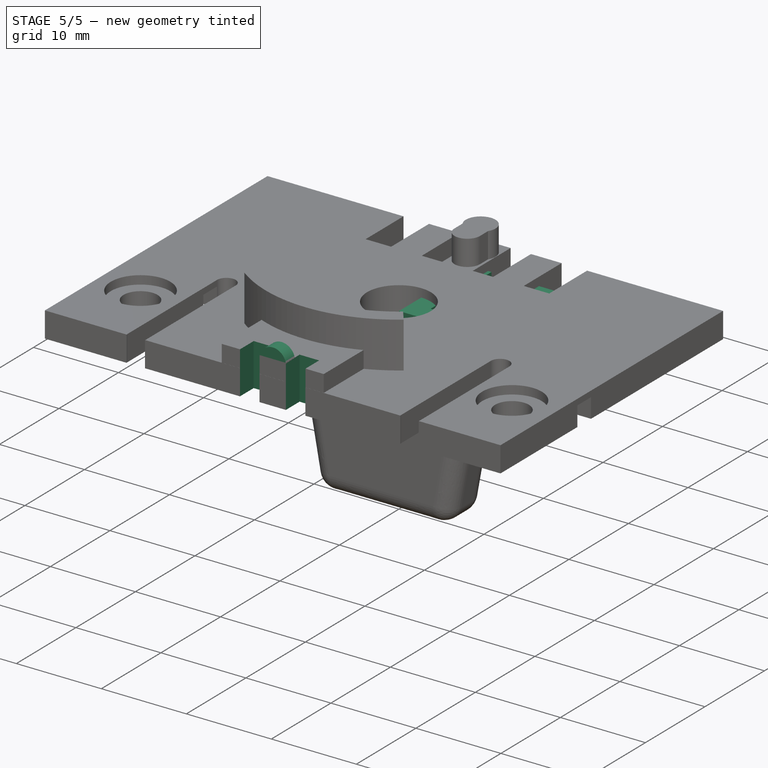
[diagram: stage 5 of 5 — iso view after this stage's code; geometry added in this stage tinted green]
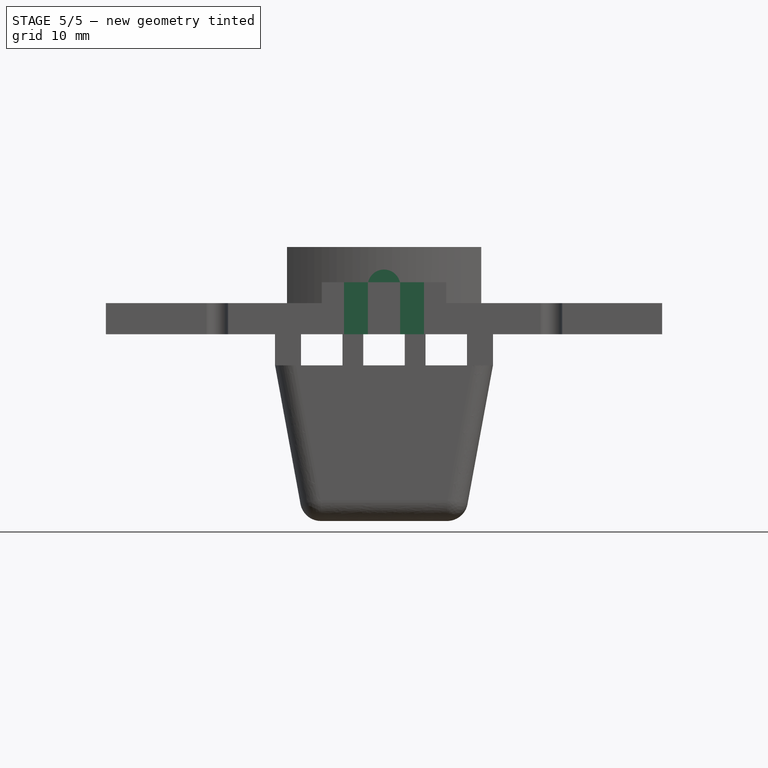
[diagram: stage 5 of 5 — front view after this stage's code; geometry added in this stage tinted green]
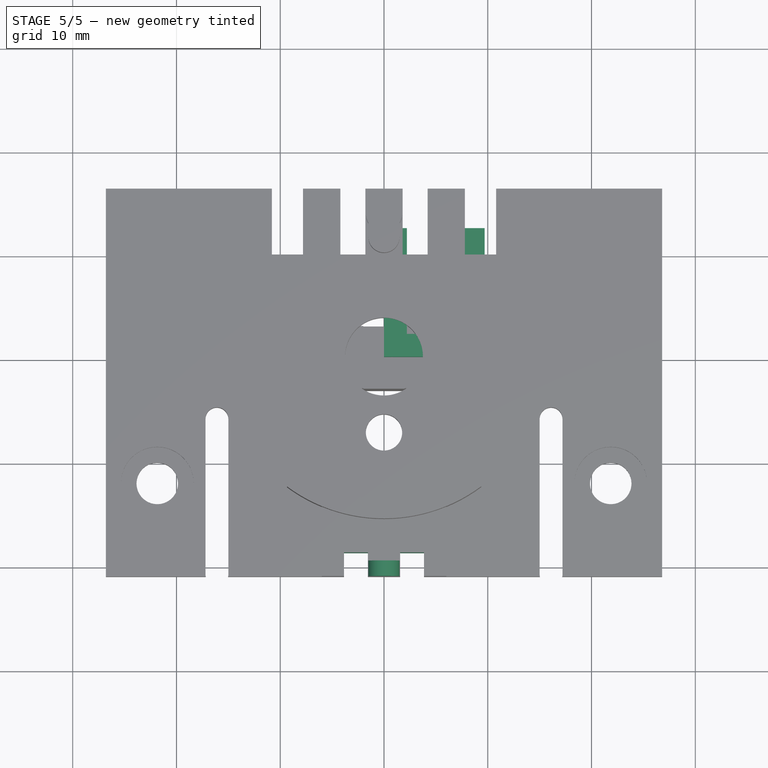
[diagram: stage 5 of 5 — top view after this stage's code; geometry added in this stage tinted green]
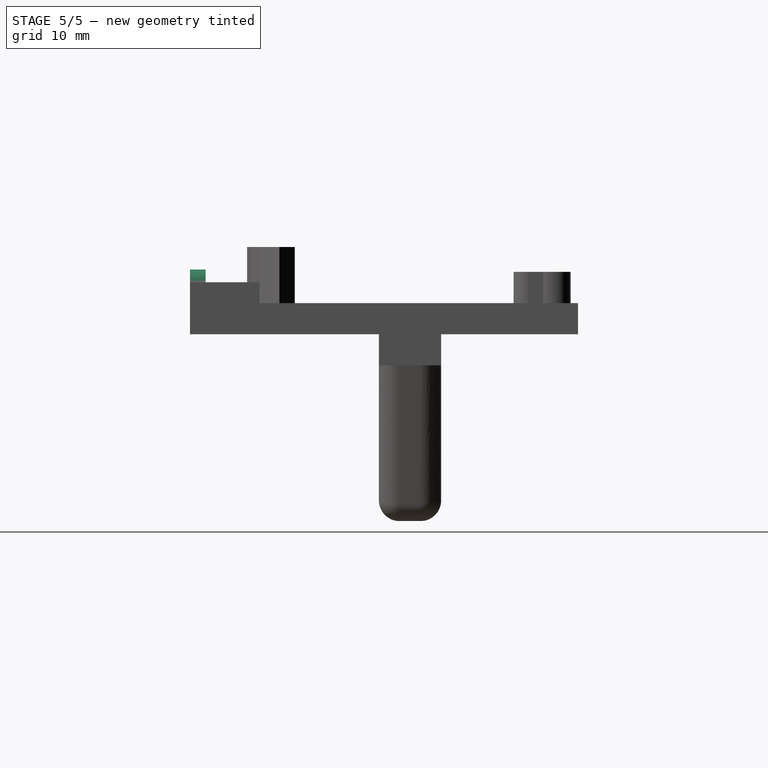
[diagram: stage 5 of 5 — right view after this stage's code; geometry added in this stage tinted green]
FEATURE [Sketcher::SketchObject] Sketch021
  FullyConstrained = true
  MapMode = 5
  Support = -> [XY_Plane003]
  sketch-geometry (6):
    g0: LineSegment StartX=0 StartY=0 StartZ=0 EndX=0 EndY=12.4 EndZ=0
    g1: LineSegment StartX=0 StartY=12.4 StartZ=0 EndX=2.2 EndY=12.4 EndZ=0
    g2: LineSegment StartX=2.2 StartY=12.4 StartZ=0 EndX=2.2 EndY=2.2 EndZ=0
    g3: LineSegment StartX=2.2 StartY=2.2 StartZ=0 EndX=11.21 EndY=2.2 EndZ=0
    g4: LineSegment StartX=11.21 StartY=2.2 StartZ=0 EndX=11.21 EndY=0 EndZ=0
    g5: LineSegment StartX=11.21 StartY=0 StartZ=0 EndX=0 EndY=0 EndZ=0
  constraints (17):
    c: DistanceX(g5,g5) = 11.21
    c: Coincident(g5,g0)
    c: Coincident(g5,g4)
    c: Vertical(g4)
    c: Coincident(g3,g4)
    c: Coincident(g0,g-1)
    c: DistanceY(g4,g4) = 2.2
    c: DistanceX(g1,g1) = 2.2
    c: DistanceY(g0,g0) = 12.4
    c: Coincident(g1,g0)
    c: Coincident(g1,g2)
    c: Horizontal(g1)
    c: Horizontal(g5)
    c: Coincident(g3,g2)
    c: Horizontal(g3)
    c: Vertical(g2)
    c: Vertical(g0)
FEATURE [PartDesign::Pad] Pad008
  Direction = (0,0,1)
  Length = 2
  Length2 = 10
  Profile = -> Sketch021
  ReferenceAxis = -> Sketch021 [N_Axis]
  Type = 0
FEATURE [PartDesign::Body] Body002  label="l_shape"
  Group = -> [Sketch021,Pad008]
  Origin = -> Origin003
  Placement = pos=(-15.2,-21.2,-2.2) rot=(0,0,1;0rad)
  Tip = -> Pad008
FEATURE [Sketcher::SketchObject] Sketch022
  FullyConstrained = true
  MapMode = 5
  Support = -> [XY_Plane004]
  sketch-geometry (8):
    g0: LineSegment StartX=0 StartY=0 StartZ=0 EndX=0 EndY=12.4 EndZ=0
    g1: LineSegment StartX=0 StartY=12.4 StartZ=0 EndX=2.2 EndY=12.4 EndZ=0
    g2: LineSegment StartX=2.2 StartY=12.4 StartZ=0 EndX=2.2 EndY=2.2 EndZ=0
    g3: LineSegment StartX=2.2 StartY=2.2 StartZ=0 EndX=7.5 EndY=2.2 EndZ=0
    g4: LineSegment StartX=7.5 StartY=2.2 StartZ=0 EndX=7.5 EndY=12.4 EndZ=0
    g5: LineSegment StartX=7.5 StartY=12.4 StartZ=0 EndX=9.7 EndY=12.4 EndZ=0
    g6: LineSegment StartX=9.7 StartY=12.4 StartZ=0 EndX=9.7 EndY=0 EndZ=0
    g7: LineSegment StartX=9.7 StartY=0 StartZ=0 EndX=0 EndY=0 EndZ=0
  constraints (23):
    c: Coincident(g-1,g0)
    c: PointOnObject(g0,g-2)
    c: Coincident(g0,g1)
    c: Horizontal(g1)
    c: Coincident(g1,g2)
    c: Vertical(g2)
    c: Coincident(g2,g3)
    c: Horizontal(g3)
    c: Coincident(g3,g4)
    c: Vertical(g4)
    c: Coincident(g4,g5)
    c: Horizontal(g5)
    c: Coincident(g5,g6)
    c: PointOnObject(g6,g-1)
    c: Vertical(g6)
    c: Coincident(g6,g7)
    c: Coincident(g7,g0)
    c: DistanceX(g1,g1) = 2.2
    c: DistanceX(g5,g5) = 2.2
    c: DistanceY(g0,g0) = 12.4
    c: DistanceY(g6,g6) = 12.4
    c: DistanceY(g0,g2) = 2.2
    c: DistanceX(g7,g7) = 9.7
FEATURE [PartDesign::Pad] Pad009
  Direction = (0,0,1)
  Length = 2
  Length2 = 10
  Profile = -> Sketch022
  ReferenceAxis = -> Sketch022 [N_Axis]
  Type = 0
FEATURE [PartDesign::Pad] Pad011
  BaseFeature = -> Pad010
  Direction = (0,-1,-2e-16)
  Length = 1.5
  Length2 = 10
  Profile = -> Sketch014
  ReferenceAxis = -> Sketch014 [N_Axis]
  Reversed = true
  Type = 0
FEATURE [PartDesign::Pocket] Pocket011
  BaseFeature = -> Pad011
  Direction = (0,0,-1)
  Length = 5
  Length2 = 5
  Profile = -> Sketch007
  ReferenceAxis = -> Sketch007 [N_Axis]
  Reversed = true
  Type = 1
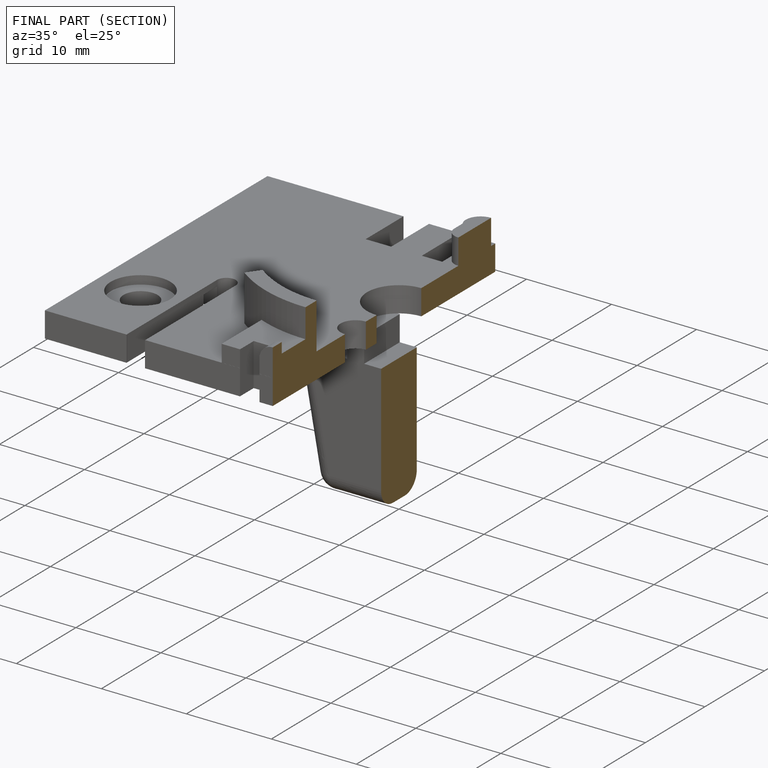
[diagram: finished part — half-section view (interior)]
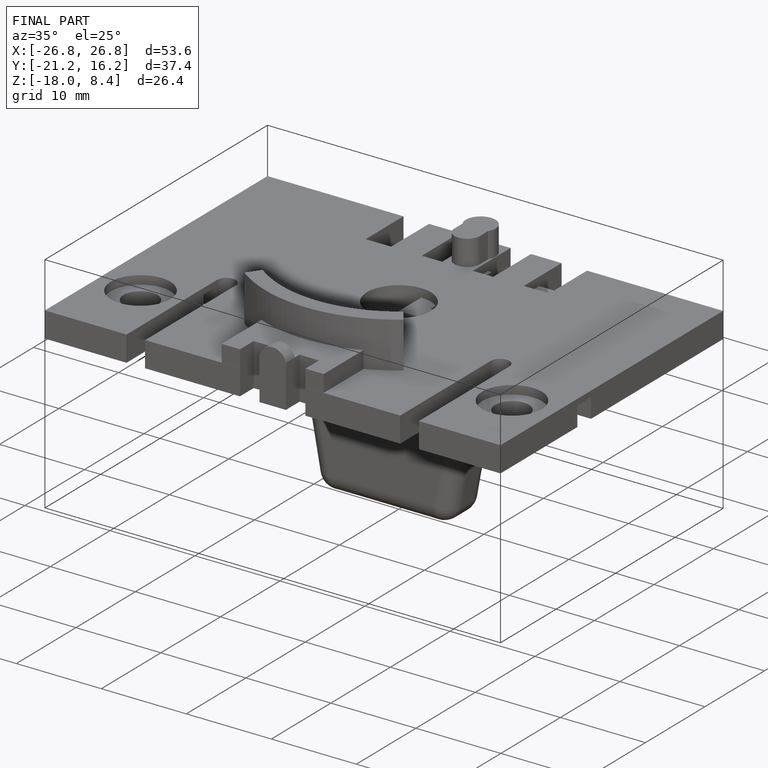
[diagram: finished part — iso view with bounding-box wireframe]
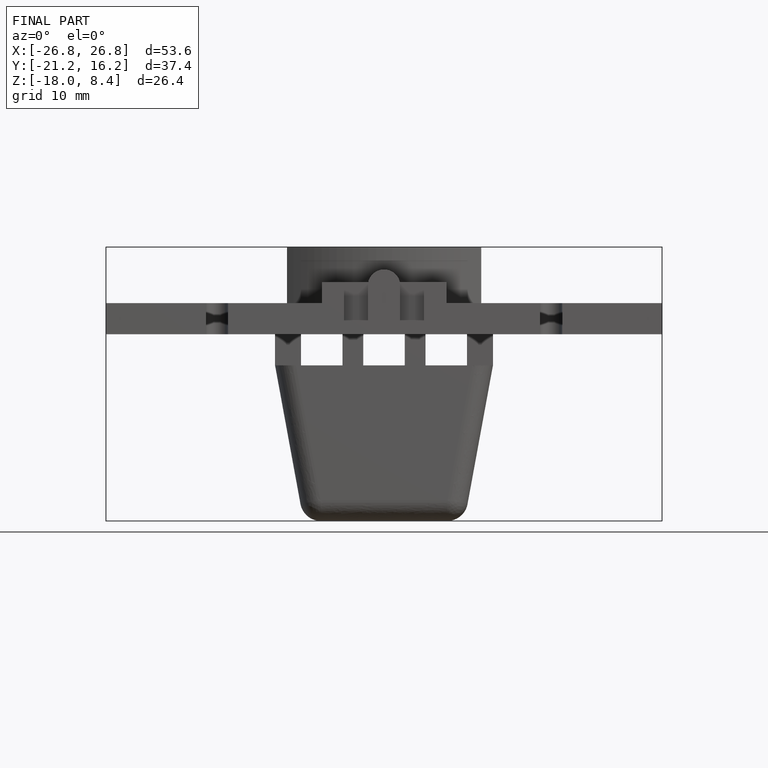
[diagram: finished part — front view with bounding-box wireframe]
